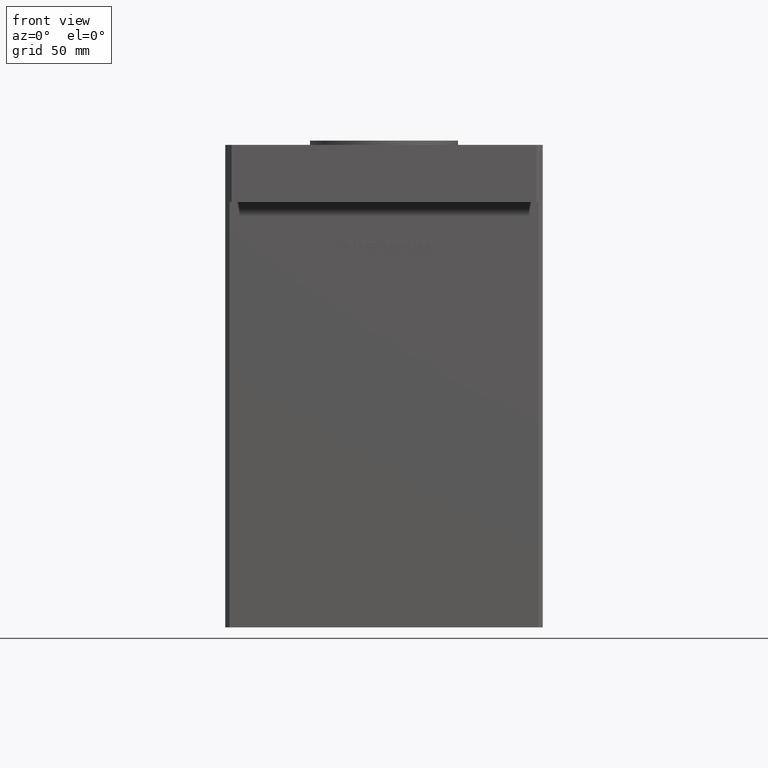
[diagram: clean part render]
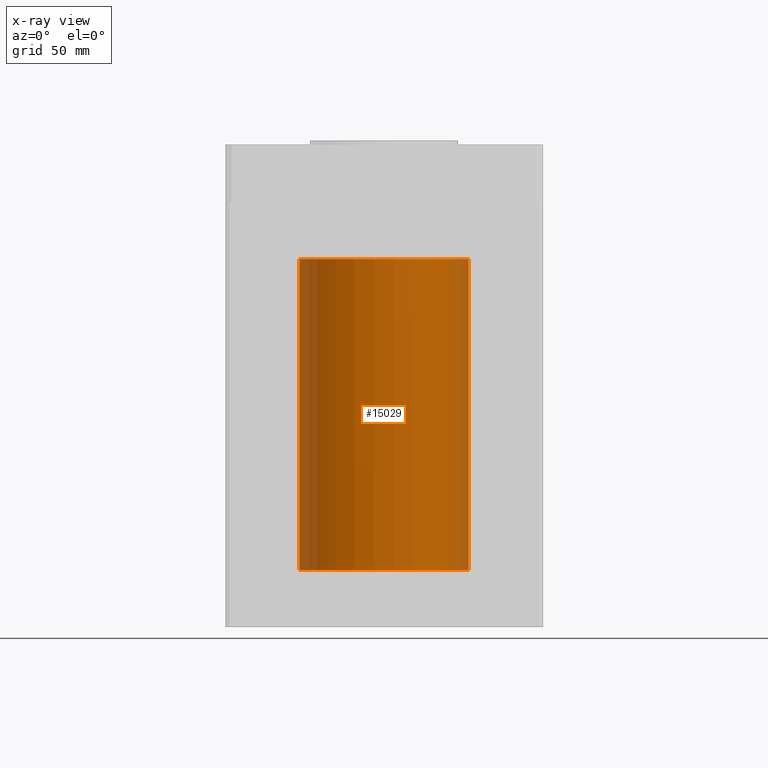
[diagram: x-ray — body ghosted, one internal face saturated and labeled with its STEP entity id]
A machine part, front view, then the same camera in x-ray: the body is ghosted and one INTERNAL B-rep face — a face not visible from any outside direction — is saturated and labeled: STEP entity #15029.
In plain terms, the highlighted cylindrical surface (partial cylindrical patch) has radius 40 mm, axis along (-0, -0, -1).
Its self-contained STEP definition (entity closure, byte-faithful):
#350 = CIRCLE ( 'NONE', #33910, 40.00000000000000000 ) ;
#607 = DIRECTION ( 'NONE',  ( -0.000000000000000000, 0.000000000000000000, 1.000000000000000000 ) ) ;
#944 = CARTESIAN_POINT ( 'NONE',  ( 40.00000000000000000, 4.898587196589413026E-15, 0.000000000000000000 ) ) ;
#1513 = ORIENTED_EDGE ( 'NONE', *, *, #21384, .T. ) ;
#2273 = CYLINDRICAL_SURFACE ( 'NONE', #48338, 40.00000000000000000 ) ;
#2692 = CARTESIAN_POINT ( 'NONE',  ( -40.00000000000000000, 0.000000000000000000, 147.0000000000000000 ) ) ;
#3141 = EDGE_LOOP ( 'NONE', ( #1513, #17737, #12282, #32045 ) ) ;
#7460 = VERTEX_POINT ( 'NONE', #14291 ) ;
#8122 = AXIS2_PLACEMENT_3D ( 'NONE', #18532, #22570, #31669 ) ;
#9835 = FACE_OUTER_BOUND ( 'NONE', #3141, .T. ) ;
#10595 = VECTOR ( 'NONE', #37776, 1000.000000000000000 ) ;
#11580 = DIRECTION ( 'NONE',  ( -0.000000000000000000, -0.000000000000000000, -1.000000000000000000 ) ) ;
#12282 = ORIENTED_EDGE ( 'NONE', *, *, #20171, .F. ) ;
#14191 = CIRCLE ( 'NONE', #8122, 40.00000000000000000 ) ;
#14291 = CARTESIAN_POINT ( 'NONE',  ( 40.00000000000000000, 4.898587196589413026E-15, 147.0000000000000000 ) ) ;
#15029 = ADVANCED_FACE ( 'NONE', ( #9835 ), #2273, .F. ) ;
#17142 = VERTEX_POINT ( 'NONE', #944 ) ;
#17737 = ORIENTED_EDGE ( 'NONE', *, *, #36806, .T. ) ;
#18532 = CARTESIAN_POINT ( 'NONE',  ( 0.000000000000000000, 0.000000000000000000, 147.0000000000000000 ) ) ;
#18702 = DIRECTION ( 'NONE',  ( -1.000000000000000000, 0.000000000000000000, 0.000000000000000000 ) ) ;
#20171 = EDGE_CURVE ( 'NONE', #28226, #17142, #350, .T. ) ;
#21065 = VERTEX_POINT ( 'NONE', #2692 ) ;
#21384 = EDGE_CURVE ( 'NONE', #21065, #7460, #14191, .T. ) ;
#22570 = DIRECTION ( 'NONE',  ( -0.000000000000000000, 0.000000000000000000, 1.000000000000000000 ) ) ;
#22994 = DIRECTION ( 'NONE',  ( -0.000000000000000000, -0.000000000000000000, -1.000000000000000000 ) ) ;
#28226 = VERTEX_POINT ( 'NONE', #30950 ) ;
#28613 = CARTESIAN_POINT ( 'NONE',  ( 40.00000000000000000, 4.898587196589413026E-15, 147.0000000000000000 ) ) ;
#28792 = LINE ( 'NONE', #40910, #49447 ) ;
#28885 = LINE ( 'NONE', #28613, #10595 ) ;
#30950 = CARTESIAN_POINT ( 'NONE',  ( -40.00000000000000000, 0.000000000000000000, 0.000000000000000000 ) ) ;
#31669 = DIRECTION ( 'NONE',  ( 1.000000000000000000, 0.000000000000000000, 0.000000000000000000 ) ) ;
#32045 = ORIENTED_EDGE ( 'NONE', *, *, #48054, .F. ) ;
#33910 = AXIS2_PLACEMENT_3D ( 'NONE', #41534, #607, #41256 ) ;
#36806 = EDGE_CURVE ( 'NONE', #7460, #17142, #28885, .T. ) ;
#37776 = DIRECTION ( 'NONE',  ( -0.000000000000000000, -0.000000000000000000, -1.000000000000000000 ) ) ;
#40910 = CARTESIAN_POINT ( 'NONE',  ( -40.00000000000000000, 0.000000000000000000, 147.0000000000000000 ) ) ;
#41256 = DIRECTION ( 'NONE',  ( 1.000000000000000000, 0.000000000000000000, 0.000000000000000000 ) ) ;
#41534 = CARTESIAN_POINT ( 'NONE',  ( 0.000000000000000000, 0.000000000000000000, 0.000000000000000000 ) ) ;
#43709 = CARTESIAN_POINT ( 'NONE',  ( 0.000000000000000000, 0.000000000000000000, 147.0000000000000000 ) ) ;
#48054 = EDGE_CURVE ( 'NONE', #21065, #28226, #28792, .T. ) ;
#48338 = AXIS2_PLACEMENT_3D ( 'NONE', #43709, #22994, #18702 ) ;
#49447 = VECTOR ( 'NONE', #11580, 1000.000000000000000 ) ;